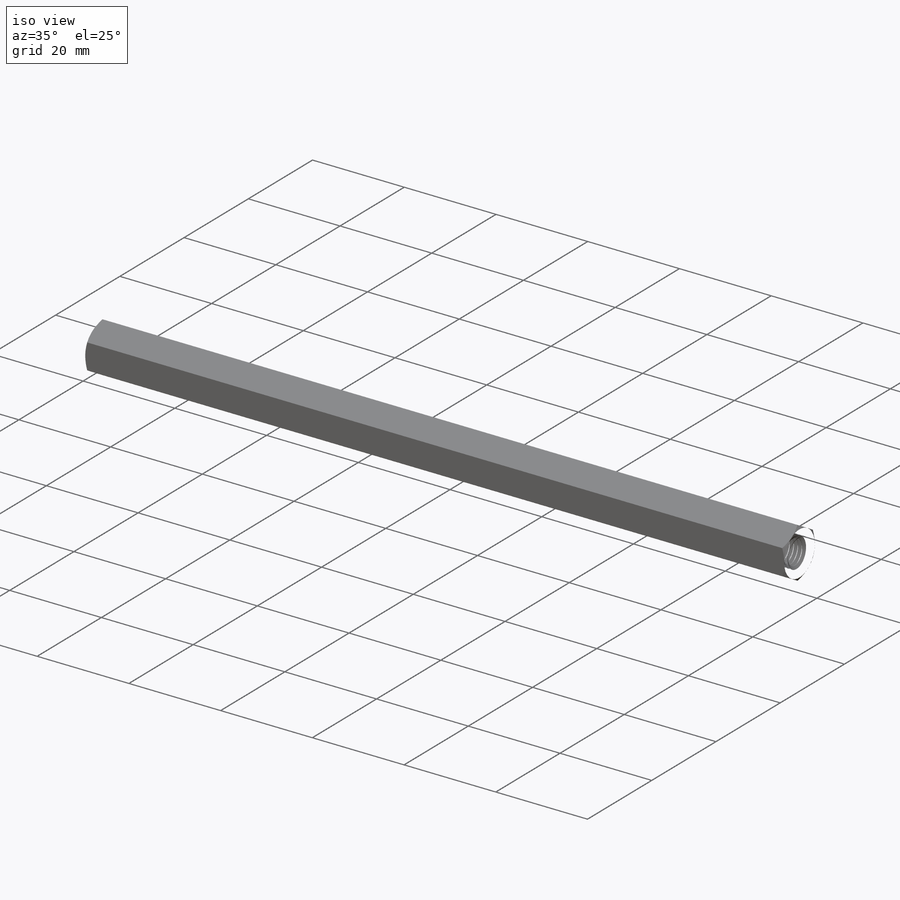
[diagram: iso view]
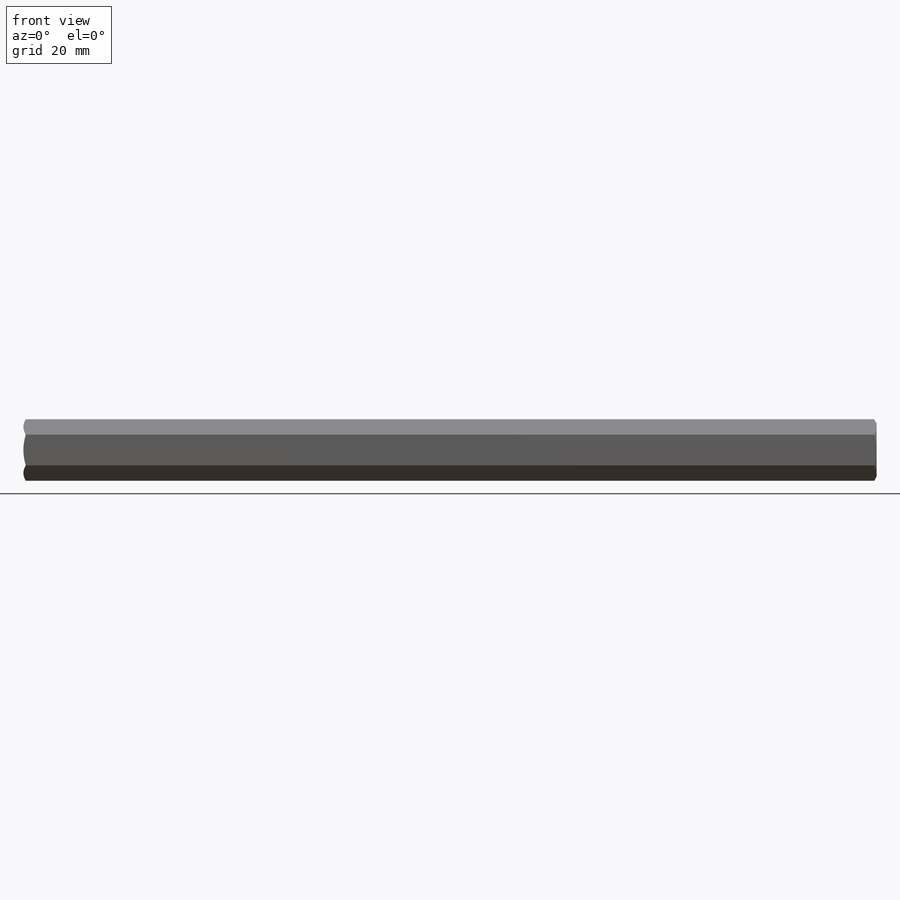
[diagram: front view]
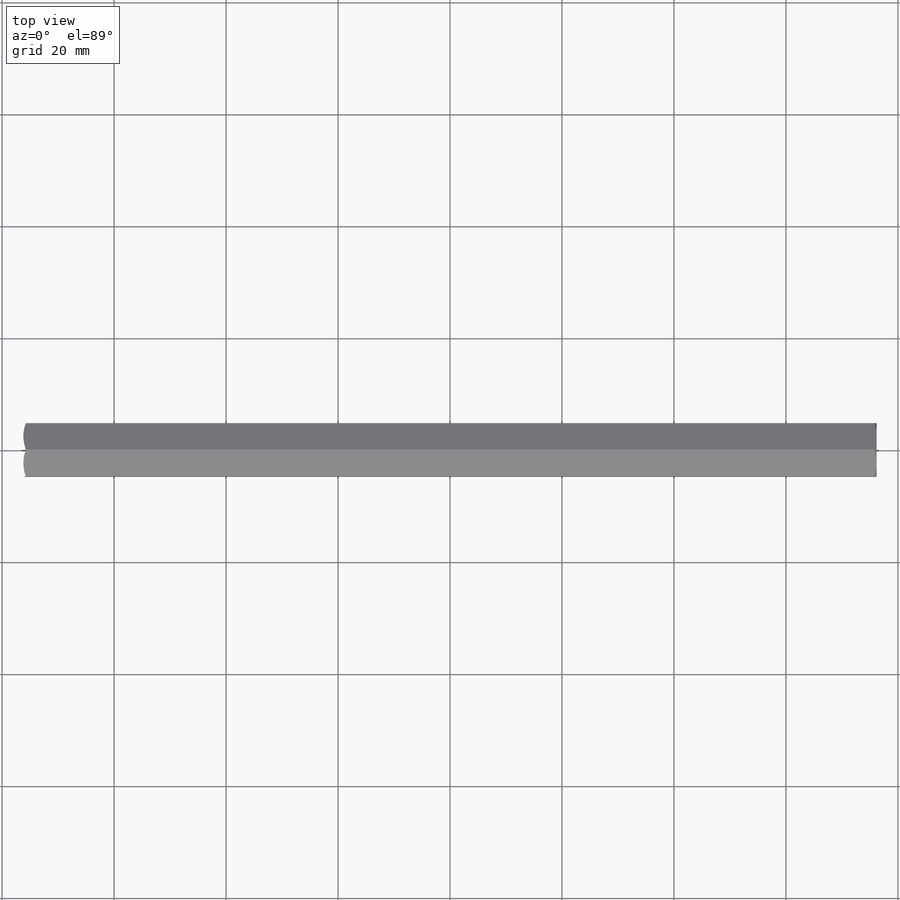
[diagram: top view]
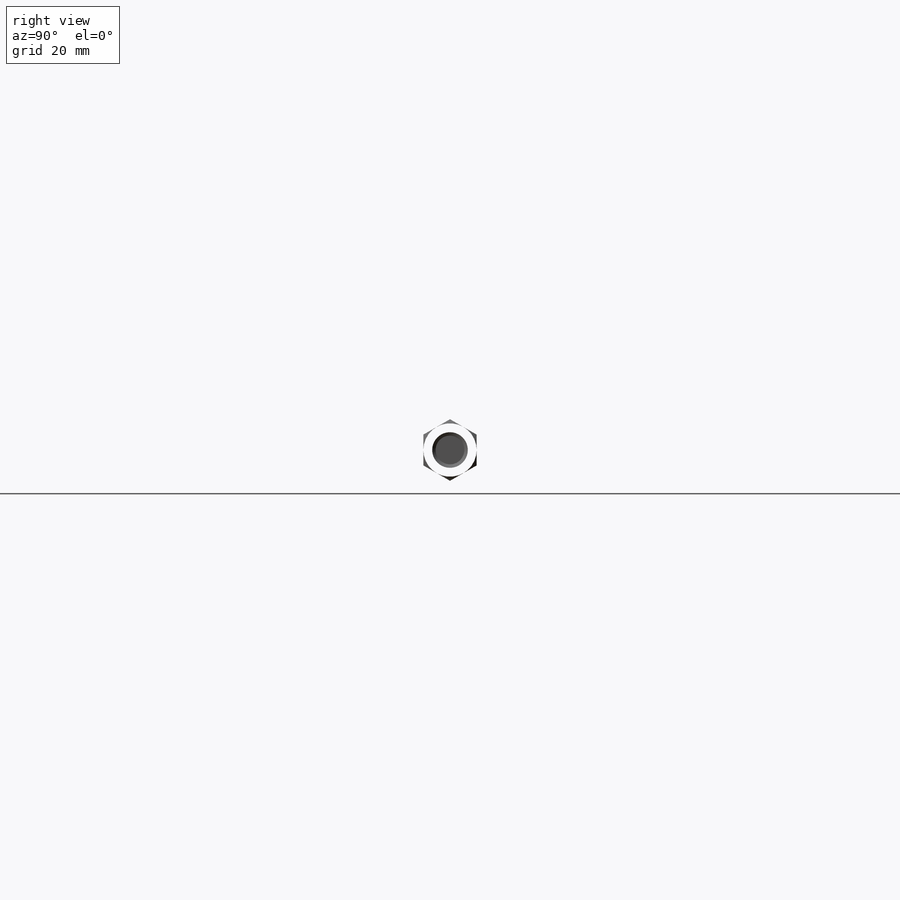
[diagram: right view]
SOLIDWORKS PART (.sldprt)
format: sldprt  version: not decoded by parser v0  size: 2,519,040 bytes
history: native  units: mm
features: sketch x9, cut_extrude x4, extrude x2, material x1, plane x1, helix x1, sweep x1, mirror x1, boolean_combine x1 (+11 scaffold rows collapsed)
feature tree (32):
  scaffold x11  (default folders/planes/origin — collapsed)
  material  "Material <not specified>"
  sketch  "Sketch1"  dims[Length=152.4mm Thread Lenght=41.275mm D1=19.05mm Thread Size=6.35mm Rod OD=9.525mm Thread Length=19.05mm D2=114.3mm D3=~16.933333mm D4=~16.933333mm D5=~7.257143mm]
  plane  "Plane1"
  sketch  "Sketch2"
  extrude  "Extrude1"  [1 undecoded]
  sketch  "Sketch3"  dims[D1=0.0mm]
  helix  "Helix/Spiral1"  Pitch=19.957143mm pitch=0.907143mm
  sketch  "Sketch4"  dims[c1.D1=~2.21321mm c2.D1=60.0deg c2.D2=~0.113393mm c2.D3=~0.453571mm]
  sweep  "Cut-Sweep1"
  mirror  "Mirror1"
  sketch  "Sketch6"  dims[D1=9.525mm]
  extrude  "Extrude2"  [1 undecoded]
  boolean_combine  "Combine1"
  sketch  "Sketch9"
  cut_extrude  "Extrude5"  [1 undecoded]
  sketch  "Sketch10"
  cut_extrude  "Extrude7"  [1 undecoded]
  sketch  "Sketch7"
  cut_extrude  "Extrude3"  [1 undecoded]
  sketch  "Sketch8"  dims[D1=0.0mm]
  cut_extrude  "Extrude4"  [1 undecoded]
decode coverage: 6 of 19 modeling features carry decoded parameters
note: ~ marks probable driven/reference dimensions
note: 6 parameter values undecoded
summary: no parameter record found for 6 features
note: suppression state not decoded; provenance and decode notes live in map.json
